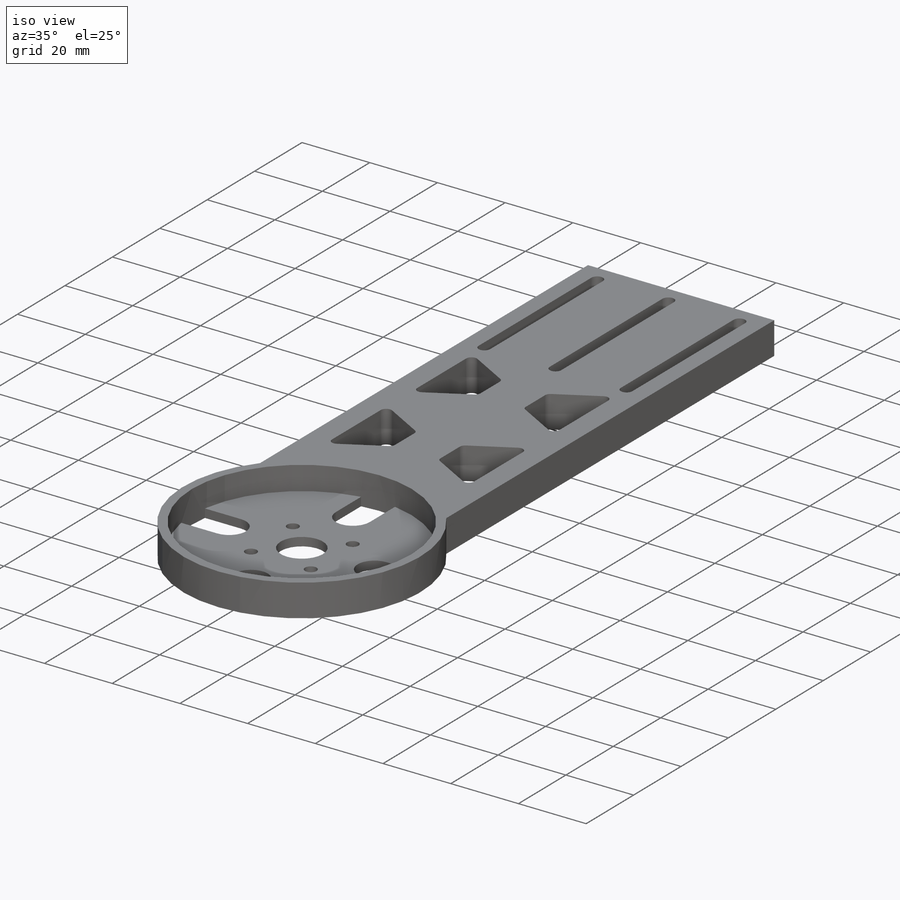
[diagram: iso view]
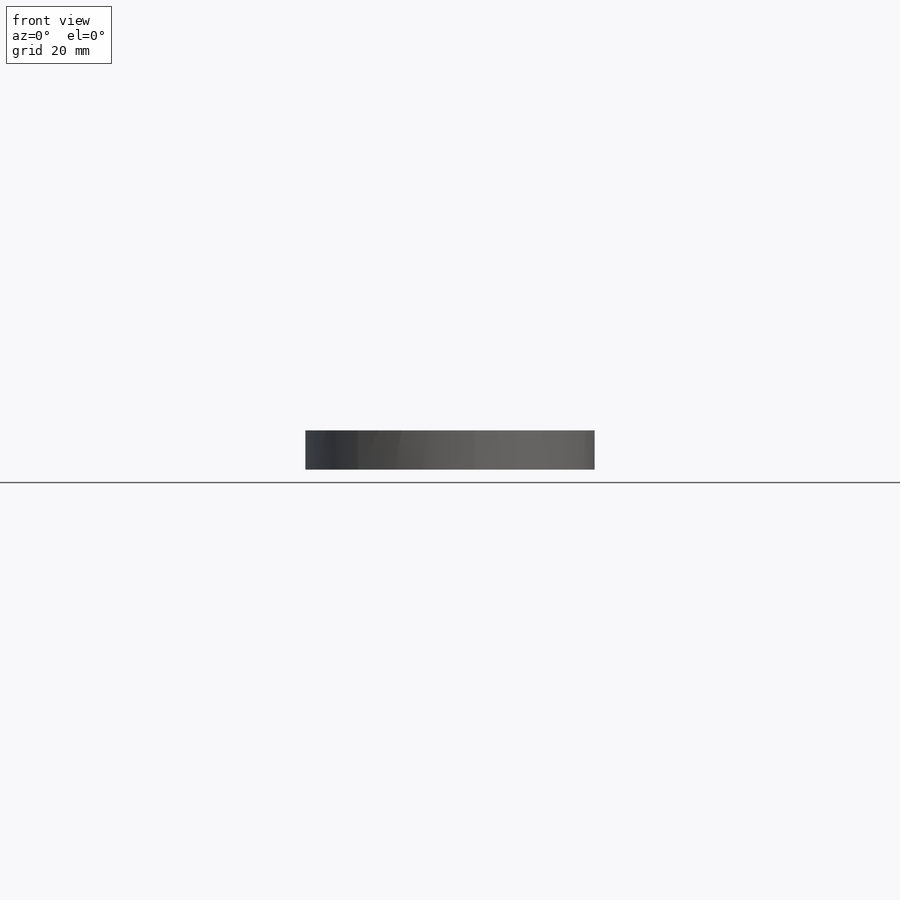
[diagram: front view]
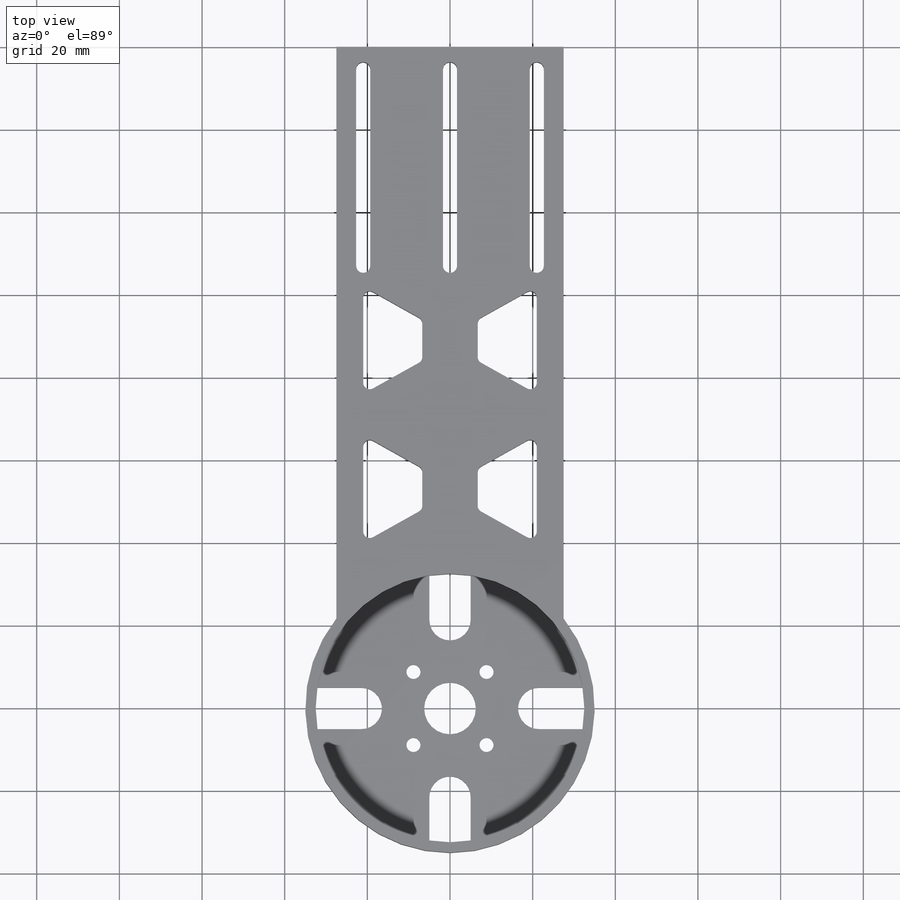
[diagram: top view]
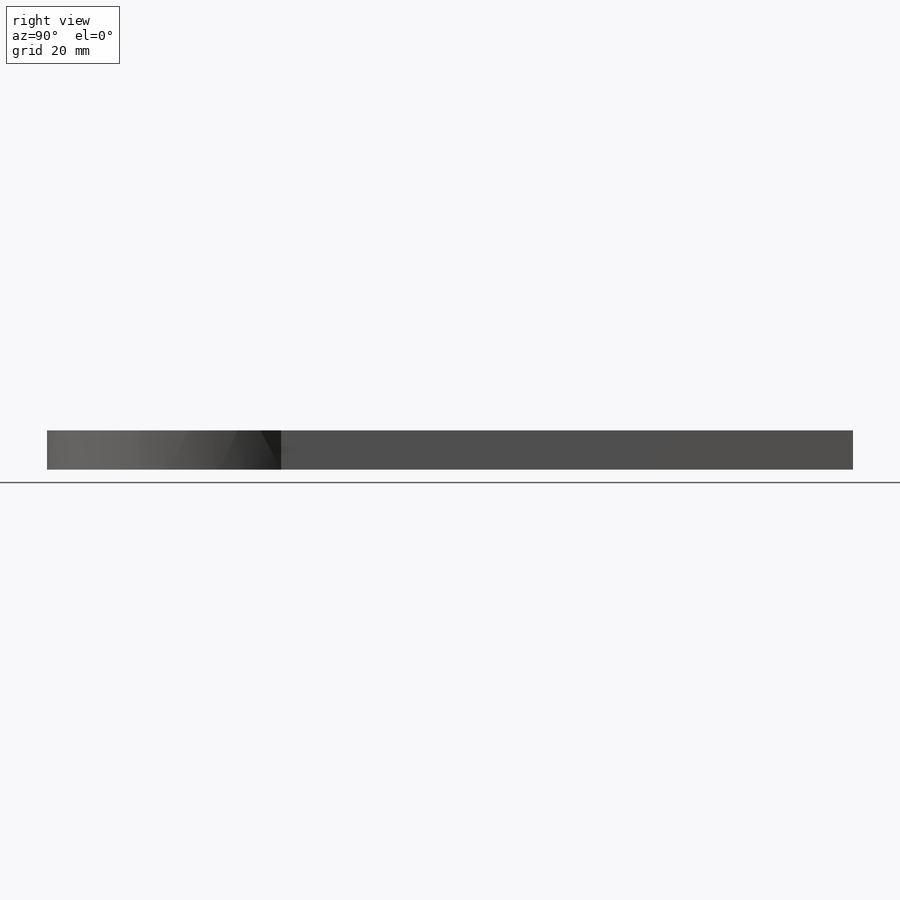
[diagram: right view]
SOLIDWORKS PART (.sldprt)
format: sldprt  version: not decoded by parser v0  size: 434,688 bytes
history: native  units: mm
features: sketch x4, material x1, extrude x1, cut_extrude x1, hole x1 (+13 scaffold rows collapsed)
feature tree (21):
  scaffold x13  (default folders/planes/origin — collapsed)
  material  "6061-T6 (SS)"
  sketch  "Sketch1"  dims[c1.D1=~47.372617mm c1.D2=~2.428648mm c2.D1=~1.955698mm c2.D3=~3.943163mm c2.D4=~2.191356mm c3.D1=3.4mm c3.D2=1.5875mm c4.D1=45.0deg c5.D1=25.0mm c5.D2=25.0mm c6.D1=21.47mm c6.D2=21.47mm c7.D1=13.75mm c7.D2=13.75mm c8.D1=6.875mm c8.D2=6.875mm c9.D1=40.0mm c10.D1=6.5mm c10.D2=6.5mm c10.D3=6.0mm c11.D1=180.0mm c11.D2=6.0mm c12.D1=5.0mm c12.D2=5.0mm c12.D3=5.0mm c12.D4=5.0mm c13.D1=5.0mm c13.D2=5.0mm c13.D3=5.0mm c13.D4=5.0mm c14.D1=5.0mm c14.D2=5.0mm c14.D3=5.0mm c14.D4=5.0mm c14.D5=5.0mm c14.D6=5.0mm c14.D7=5.0mm c14.D8=5.0mm c14.D9=5.0mm c14.D10=5.0mm c14.D11=5.0mm c14.D12=5.0mm c15.D1=5.0mm c15.D2=5.0mm c15.D3=5.0mm c15.D4=5.0mm c15.D5=5.0mm c15.D6=5.0mm c15.D7=5.0mm c15.D8=5.0mm c15.D9=5.0mm c15.D10=5.0mm c15.D11=5.0mm c15.D12=5.0mm c15.D13=5.0mm c15.D14=2.0mm c16.D1=5.0mm c16.D2=5.0mm c16.D3=5.0mm c16.D4=5.0mm c16.D5=5.0mm c16.D6=5.0mm c16.D7=5.0mm c16.D8=5.0mm c16.D9=5.0mm c16.D10=5.0mm c16.D11=5.0mm c16.D12=5.0mm c16.D13=5.0mm c16.D14=4.0mm c17.D1=2.0mm c17.D2=2.0mm c17.D3=2.0mm c17.D4=2.0mm c17.D5=2.0mm c17.D6=2.0mm c17.D7=2.0mm c17.D8=2.0mm c17.D9=2.0mm c17.D10=2.0mm c17.D11=2.0mm c17.D12=2.0mm c17.D13=2.0mm c17.D14=2.0mm c17.D15=2.0mm c17.D16=2.0mm c17.D17=2.0mm c17.D18=2.0mm c17.D19=134.0mm c18.D1=5.0mm c18.D2=5.0mm c18.D3=5.0mm c18.D4=5.0mm c19.D1=5.0mm c19.D2=62.0mm c20.D1=5.0mm c20.D2=5.0mm c21.D1=5.0mm c21.D2=5.0mm c22.D1=5.0mm c22.D2=5.0mm c23.D1=160.0mm c23.D2=21.0mm c23.D3=70.0mm c23.D4=195.0mm c23.D5=~47.596554mm c23.D6=70.0mm c23.D7=70.0mm]
  extrude  "Boss-Extrude1"  Depth=9.525mm
  sketch  "Sketch3"  dims[D1=~31.791685mm]
  cut_extrude  "Cut-Extrude1"  Depth=7mm
  hole  "M3 Clearance Hole1"  Diameter=3.4mm Depth=2.525mm
  sketch  "Sketch7"  dims[D1=12.5mm]
  sketch  "Sketch6"  dims[hole-wizard template sketch: 60 standard entries collapsed; hole parameters kept: c18.Thru Hole Depth=2.525mm]
decode coverage: 7 of 7 modeling features carry decoded parameters
note: ~ marks probable driven/reference dimensions
note: suppression state not decoded; provenance and decode notes live in map.json
